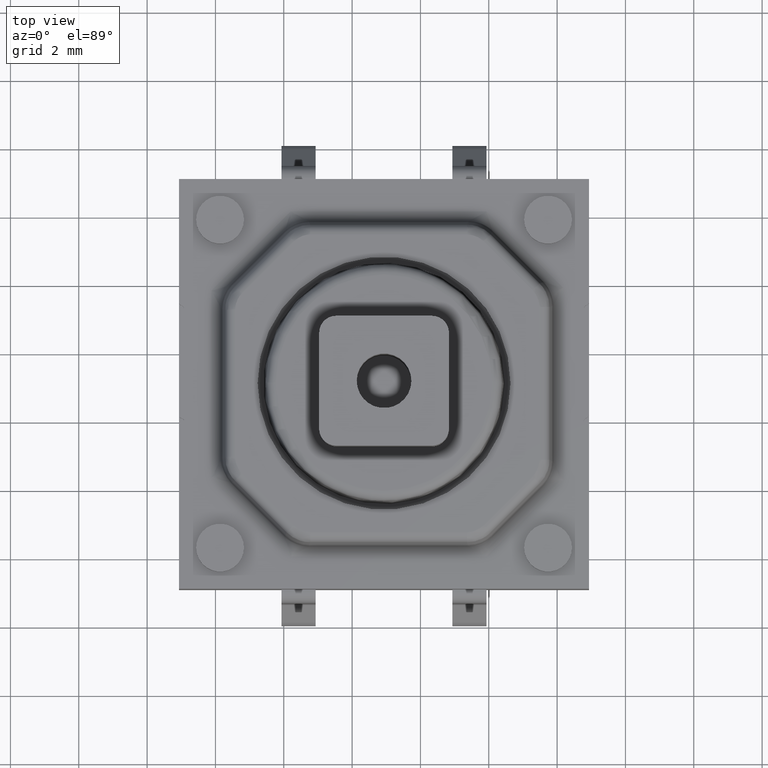
[diagram: clean part render]
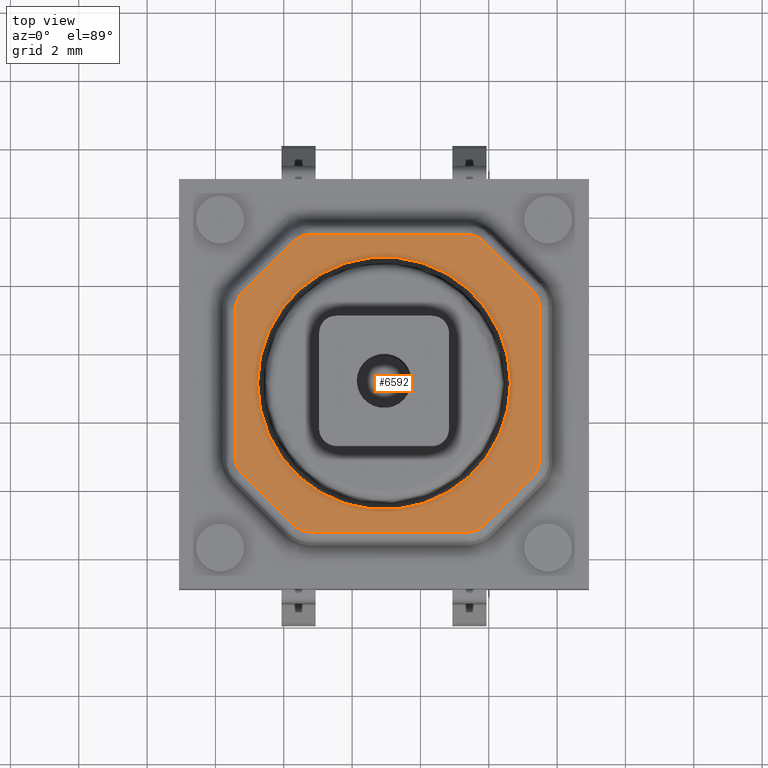
[diagram: same view with one face highlighted and labeled with its STEP entity id]
A machine part, top view. The second image highlights one B-rep face of the part: STEP entity #6592.
In plain terms, the highlighted planar face has unit normal (0, 0, 1).
Its self-contained STEP definition (entity closure, byte-faithful):
#108=ELLIPSE('',#7166,0.0280564934765843,0.0275590551181102);
#114=ELLIPSE('',#7180,0.0280564934765843,0.0275590551181102);
#118=ELLIPSE('',#7191,0.0280564934765843,0.0275590551181102);
#122=ELLIPSE('',#7202,0.0280564934765843,0.0275590551181102);
#126=ELLIPSE('',#7213,0.0280564934765843,0.0275590551181102);
#130=ELLIPSE('',#7224,0.0280564934765843,0.0275590551181102);
#134=ELLIPSE('',#7235,0.0280564934765843,0.0275590551181102);
#138=ELLIPSE('',#7246,0.0280564934765843,0.0275590551181102);
#232=FACE_BOUND('',#1116,.T.);
#372=PLANE('',#7251);
#683=FACE_OUTER_BOUND('',#1115,.T.);
#1115=EDGE_LOOP('',(#5585,#5586,#5587,#5588,#5589,#5590,#5591,#5592,#5593,
#5594,#5595,#5596,#5597,#5598,#5599,#5600));
#1116=EDGE_LOOP('',(#5601));
#1659=LINE('',#10977,#2188);
#1664=LINE('',#11039,#2193);
#1669=LINE('',#11101,#2198);
#1674=LINE('',#11163,#2203);
#1679=LINE('',#11225,#2208);
#1684=LINE('',#11287,#2213);
#1689=LINE('',#11349,#2218);
#1692=LINE('',#11402,#2221);
#2188=VECTOR('',#8773,0.393700787401575);
#2193=VECTOR('',#8800,0.393700787401575);
#2198=VECTOR('',#8827,0.393700787401575);
#2203=VECTOR('',#8854,0.393700787401575);
#2208=VECTOR('',#8881,0.393700787401575);
#2213=VECTOR('',#8908,0.393700787401575);
#2218=VECTOR('',#8935,0.393700787401575);
#2221=VECTOR('',#8954,0.393700787401575);
#2520=CIRCLE('',#7252,0.145669291338583);
#3051=VERTEX_POINT('',#10927);
#3054=VERTEX_POINT('',#10932);
#3060=VERTEX_POINT('',#10976);
#3061=VERTEX_POINT('',#10999);
#3066=VERTEX_POINT('',#11038);
#3067=VERTEX_POINT('',#11061);
#3072=VERTEX_POINT('',#11100);
#3073=VERTEX_POINT('',#11123);
#3078=VERTEX_POINT('',#11162);
#3079=VERTEX_POINT('',#11185);
#3084=VERTEX_POINT('',#11224);
#3085=VERTEX_POINT('',#11247);
#3090=VERTEX_POINT('',#11286);
#3091=VERTEX_POINT('',#11309);
#3096=VERTEX_POINT('',#11348);
#3097=VERTEX_POINT('',#11371);
#3099=VERTEX_POINT('',#11404);
#3862=EDGE_CURVE('',#3054,#3051,#108,.T.);
#3874=EDGE_CURVE('',#3051,#3060,#1659,.T.);
#3878=EDGE_CURVE('',#3060,#3061,#114,.T.);
#3886=EDGE_CURVE('',#3061,#3066,#1664,.T.);
#3890=EDGE_CURVE('',#3066,#3067,#118,.T.);
#3898=EDGE_CURVE('',#3067,#3072,#1669,.T.);
#3902=EDGE_CURVE('',#3072,#3073,#122,.T.);
#3910=EDGE_CURVE('',#3073,#3078,#1674,.T.);
#3914=EDGE_CURVE('',#3078,#3079,#126,.T.);
#3922=EDGE_CURVE('',#3079,#3084,#1679,.T.);
#3926=EDGE_CURVE('',#3084,#3085,#130,.T.);
#3934=EDGE_CURVE('',#3085,#3090,#1684,.T.);
#3938=EDGE_CURVE('',#3090,#3091,#134,.T.);
#3946=EDGE_CURVE('',#3091,#3096,#1689,.T.);
#3950=EDGE_CURVE('',#3096,#3097,#138,.T.);
#3954=EDGE_CURVE('',#3097,#3054,#1692,.T.);
#3955=EDGE_CURVE('',#3099,#3099,#2520,.T.);
#5585=ORIENTED_EDGE('',*,*,#3862,.F.);
#5586=ORIENTED_EDGE('',*,*,#3954,.F.);
#5587=ORIENTED_EDGE('',*,*,#3950,.F.);
#5588=ORIENTED_EDGE('',*,*,#3946,.F.);
#5589=ORIENTED_EDGE('',*,*,#3938,.F.);
#5590=ORIENTED_EDGE('',*,*,#3934,.F.);
#5591=ORIENTED_EDGE('',*,*,#3926,.F.);
#5592=ORIENTED_EDGE('',*,*,#3922,.F.);
#5593=ORIENTED_EDGE('',*,*,#3914,.F.);
#5594=ORIENTED_EDGE('',*,*,#3910,.F.);
#5595=ORIENTED_EDGE('',*,*,#3902,.F.);
#5596=ORIENTED_EDGE('',*,*,#3898,.F.);
#5597=ORIENTED_EDGE('',*,*,#3890,.F.);
#5598=ORIENTED_EDGE('',*,*,#3886,.F.);
#5599=ORIENTED_EDGE('',*,*,#3878,.F.);
#5600=ORIENTED_EDGE('',*,*,#3874,.F.);
#5601=ORIENTED_EDGE('',*,*,#3955,.T.);
#6592=ADVANCED_FACE('',(#683,#232),#372,.T.);
#7166=AXIS2_PLACEMENT_3D('',#10934,#8745,#8746);
#7180=AXIS2_PLACEMENT_3D('',#11003,#8780,#8781);
#7191=AXIS2_PLACEMENT_3D('',#11065,#8807,#8808);
#7202=AXIS2_PLACEMENT_3D('',#11127,#8834,#8835);
#7213=AXIS2_PLACEMENT_3D('',#11189,#8861,#8862);
#7224=AXIS2_PLACEMENT_3D('',#11251,#8888,#8889);
#7235=AXIS2_PLACEMENT_3D('',#11313,#8915,#8916);
#7246=AXIS2_PLACEMENT_3D('',#11375,#8942,#8943);
#7251=AXIS2_PLACEMENT_3D('',#11403,#8955,#8956);
#7252=AXIS2_PLACEMENT_3D('',#11405,#8957,#8958);
#8745=DIRECTION('center_axis',(-8.32667268468867E-17,-1.11022302462516E-16,
-1.));
#8746=DIRECTION('ref_axis',(-0.923879532511287,-0.38268343236509,1.19414820448477E-16));
#8773=DIRECTION('',(-5.02396351665181E-17,1.,-1.11022302462516E-16));
#8780=DIRECTION('center_axis',(-8.32667268468867E-17,-1.11022302462516E-16,
-1.));
#8781=DIRECTION('ref_axis',(-0.923879532511287,0.38268343236509,3.44420288976161E-17));
#8800=DIRECTION('',(0.707106781186548,0.707106781186547,-1.3738309013483E-16));
#8807=DIRECTION('center_axis',(-8.32667268468867E-17,-1.11022302462516E-16,
-1.));
#8808=DIRECTION('ref_axis',(-0.38268343236509,0.923879532511287,-7.07064360658226E-17));
#8827=DIRECTION('',(1.,5.02396351665181E-17,-8.32667268468868E-17));
#8834=DIRECTION('center_axis',(-8.32667268468867E-17,-1.11022302462516E-16,
-1.));
#8835=DIRECTION('ref_axis',(0.38268343236509,0.923879532511287,-1.34436029728969E-16));
#8854=DIRECTION('',(0.707106781186548,-0.707106781186548,1.96261557335472E-17));
#8861=DIRECTION('center_axis',(-8.32667268468867E-17,-1.11022302462516E-16,
-1.));
#8862=DIRECTION('ref_axis',(0.923879532511287,0.382683432365089,-1.19414820448477E-16));
#8881=DIRECTION('',(5.02396351665181E-17,-1.,1.11022302462516E-16));
#8888=DIRECTION('center_axis',(-8.32667268468867E-17,-1.11022302462516E-16,
-1.));
#8889=DIRECTION('ref_axis',(0.923879532511287,-0.38268343236509,-3.44420288976161E-17));
#8908=DIRECTION('',(-0.707106781186548,-0.707106781186547,1.3738309013483E-16));
#8915=DIRECTION('center_axis',(-8.32667268468867E-17,-1.11022302462516E-16,
-1.));
#8916=DIRECTION('ref_axis',(0.38268343236509,-0.923879532511287,7.07064360658226E-17));
#8935=DIRECTION('',(-1.,-2.6174120796207E-16,8.32667268468868E-17));
#8942=DIRECTION('center_axis',(-8.32667268468867E-17,-1.11022302462516E-16,
-1.));
#8943=DIRECTION('ref_axis',(-0.38268343236509,-0.923879532511287,1.34436029728969E-16));
#8954=DIRECTION('',(-0.707106781186548,0.707106781186548,-1.96261557335472E-17));
#8955=DIRECTION('center_axis',(8.32667268468867E-17,1.11022302462516E-16,
1.));
#8956=DIRECTION('ref_axis',(-1.,5.55111512312578E-17,8.32667268468867E-17));
#8957=DIRECTION('center_axis',(-8.32667268468867E-17,-1.11022302462516E-16,
-1.));
#8958=DIRECTION('ref_axis',(1.,-5.55111512312578E-17,-8.32667268468867E-17));
#10927=CARTESIAN_POINT('',(-0.370892634064838,-0.279853893348863,0.186311544205581));
#10932=CARTESIAN_POINT('',(-0.362943403400093,-0.299045033830123,0.186311544205581));
#10934=CARTESIAN_POINT('Origin',(-0.342908436099483,-0.279504368835994,
0.186311544205581));
#10976=CARTESIAN_POINT('',(-0.370892634064838,-0.110210898908659,0.186311544205581));
#10977=CARTESIAN_POINT('',(-0.370892634064838,-0.143366624426817,0.186311544205581));
#10999=CARTESIAN_POINT('',(-0.362943403400093,-0.0910197584273989,0.186311544205581));
#11003=CARTESIAN_POINT('Origin',(-0.342908436099483,-0.110560423421528,
0.186311544205581));
#11038=CARTESIAN_POINT('',(-0.303475727204488,-0.0315520822317936,0.186311544205581));
#11039=CARTESIAN_POINT('',(-0.311798356665073,-0.0398747116923792,0.186311544205581));
#11061=CARTESIAN_POINT('',(-0.284284586723227,-0.0236028515670483,0.186311544205581));
#11065=CARTESIAN_POINT('Origin',(-0.283935062210359,-0.0515870495324034,
0.186311544205581));
#11100=CARTESIAN_POINT('',(-0.103842363610456,-0.0236028515670482,0.186311544205581));
#11101=CARTESIAN_POINT('',(-0.147797317801182,-0.0236028515670482,0.186311544205581));
#11123=CARTESIAN_POINT('',(-0.0846512231291956,-0.0315520822317936,0.186311544205581));
#11127=CARTESIAN_POINT('Origin',(-0.104191888123325,-0.0515870495324034,
0.186311544205581));
#11162=CARTESIAN_POINT('',(-0.0283465677802012,-0.087856737580788,0.186311544205581));
#11163=CARTESIAN_POINT('',(-0.03890579073046,-0.0772975146305292,0.186311544205581));
#11185=CARTESIAN_POINT('',(-0.0203973371154558,-0.107047878062048,0.186311544205581));
#11189=CARTESIAN_POINT('Origin',(-0.048381535080811,-0.107397402574917,
0.186311544205581));
#11224=CARTESIAN_POINT('',(-0.0203973371154558,-0.283016914195474,0.186311544205581));
#11225=CARTESIAN_POINT('',(-0.0203973371154558,-0.246698167830705,0.186311544205581));
#11247=CARTESIAN_POINT('',(-0.0283465677802012,-0.302208054676734,0.186311544205581));
#11251=CARTESIAN_POINT('Origin',(-0.048381535080811,-0.282667389682605,
0.186311544205581));
#11286=CARTESIAN_POINT('',(-0.0846512231291955,-0.358512710025728,0.186311544205581));
#11287=CARTESIAN_POINT('',(-0.081728208004894,-0.355589694901427,0.186311544205581));
#11309=CARTESIAN_POINT('',(-0.103842363610456,-0.366461940690474,0.186311544205581));
#11313=CARTESIAN_POINT('Origin',(-0.104191888123325,-0.338477742725118,
0.186311544205581));
#11348=CARTESIAN_POINT('',(-0.284284586723227,-0.366461940690474,0.186311544205581));
#11349=CARTESIAN_POINT('',(-0.25112886120507,-0.366461940690474,0.186311544205581));
#11371=CARTESIAN_POINT('',(-0.303475727204488,-0.358512710025728,0.186311544205581));
#11375=CARTESIAN_POINT('Origin',(-0.283935062210359,-0.338477742725119,
0.186311544205581));
#11402=CARTESIAN_POINT('',(-0.354620773939507,-0.307367663290709,0.186311544205581));
#11403=CARTESIAN_POINT('Origin',(-0.199463089503126,-0.195032396128761,
0.186311544205581));
#11404=CARTESIAN_POINT('',(-0.345132380841708,-0.195032396128761,0.186311544205581));
#11405=CARTESIAN_POINT('Origin',(-0.199463089503126,-0.195032396128761,
0.186311544205581));